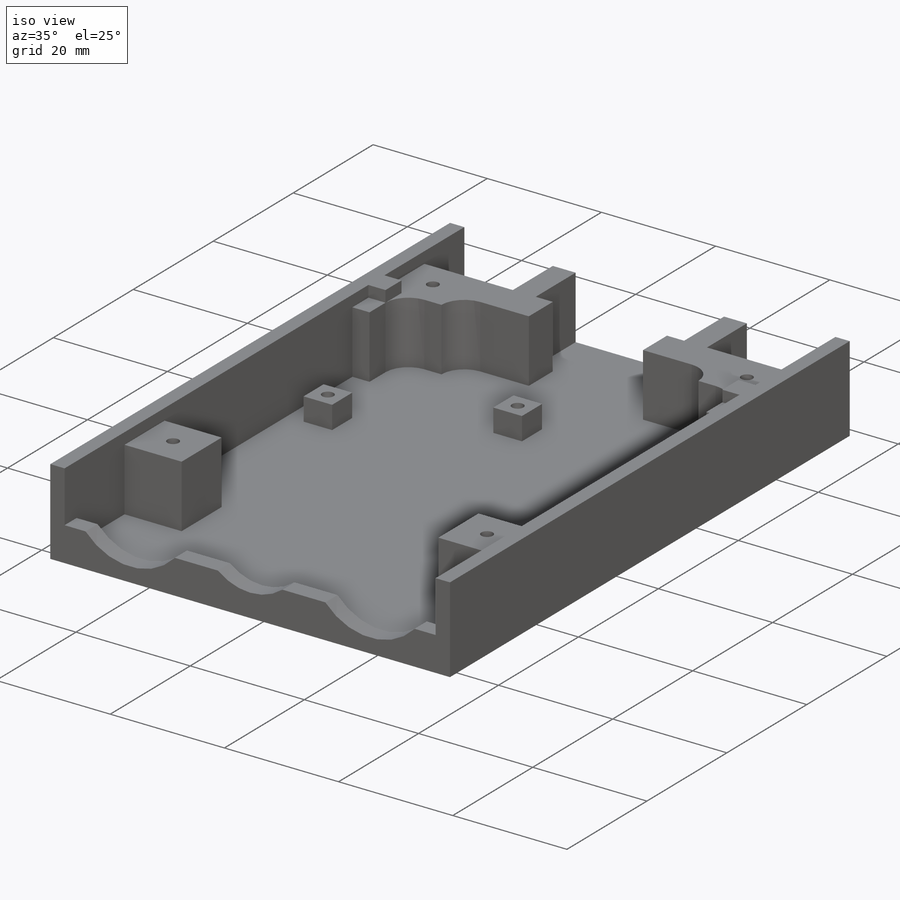
[diagram: iso view]
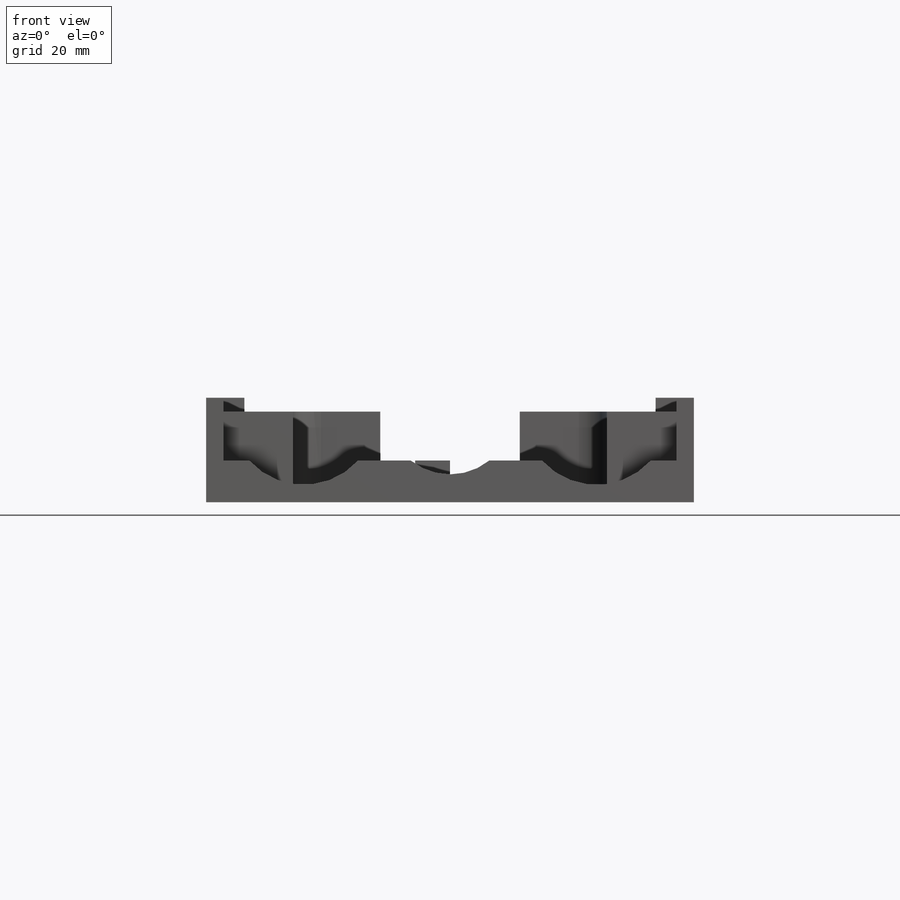
[diagram: front view]
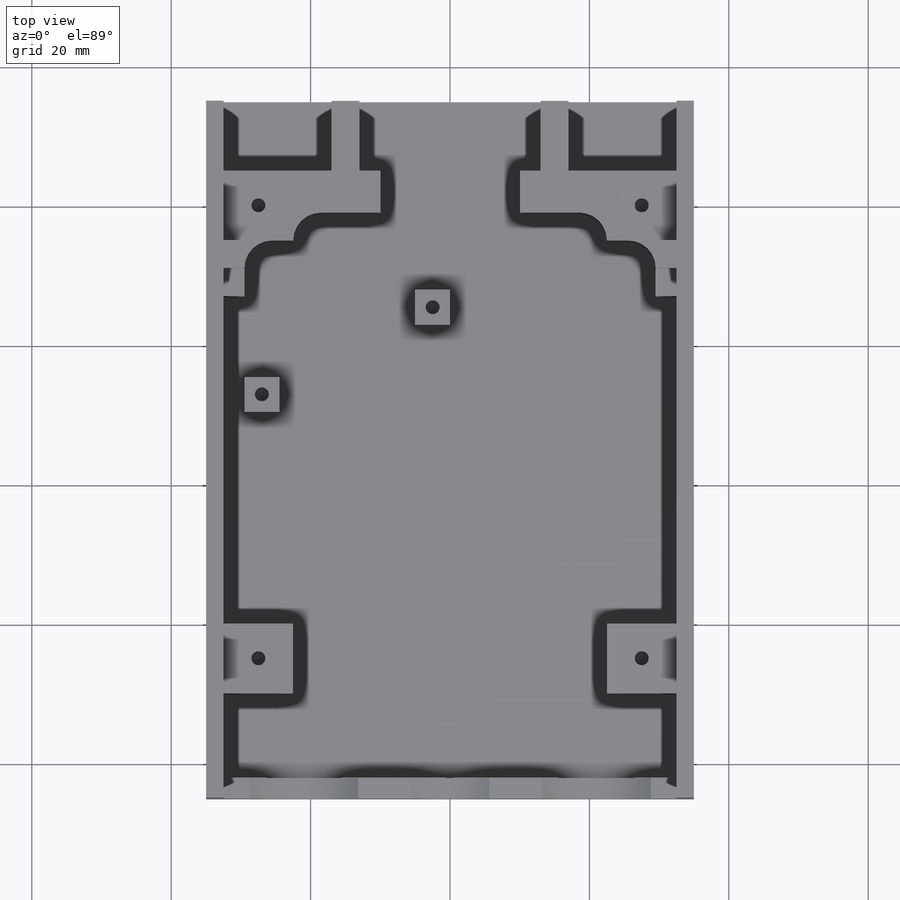
[diagram: top view]
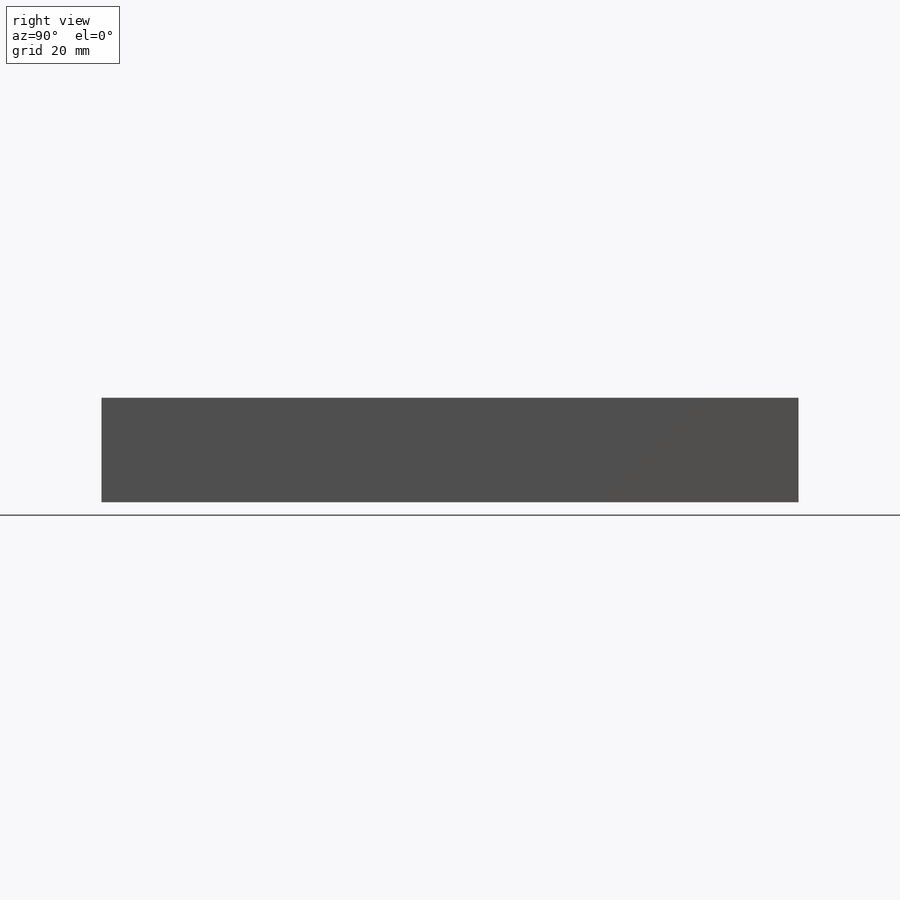
[diagram: right view]
SOLIDWORKS PART (.sldprt)
format: sldprt  version: not decoded by parser v0  size: 1,294,848 bytes
history: native  units: mm
features: sketch x11, extrude x9, material x1, fillet x1, hole x1 (+15 scaffold rows collapsed)
feature tree (38):
  scaffold x15  (default folders/planes/origin — collapsed)
  material  "HDPE 500"
  sketch  "Sketch1"  dims[D1=65.0mm D2=90.0mm]
  extrude  "Extrude1"  Depth=2mm
  sketch  "Sketch2"  dims[c1.D1=19.0mm c1.D2=20.0mm c1.D3=20.0mm c2.D2=4.0mm c2.D3=8.0mm c2.D4=4.0mm c3.D2=25.0mm c3.D4=7.5mm c3.D5=5.0mm c3.D6=4.0mm c3.D7=3.0mm c3.D8=21.0mm c3.D9=10.0mm c3.D10=6.0mm c3.D11=10.0mm c3.D12=6.0mm c3.D13=7.75mm c3.D14=7.0mm c3.D15=8.0mm c3.D16=50.0mm c3.D17=6.0mm c3.D18=14.5mm c3.D19=4.0mm c3.D20=3.0mm c3.D21=10.0mm c3.D22=10.0mm c4.D8=20.0mm c4.D18=3.0mm c4.D23=8.0mm c4.D24=4.0mm c4.D25=8.0mm c4.D26=3.0mm c4.D27=4.0mm c4.D4=20.0mm c4.D5=10.0mm c4.D6=10.0mm c4.D7=10.0mm c5.D8=10.0mm c5.D3=10.0mm c5.D9=10.0mm c5.D5=10.0mm c6.D9=6.0mm c6.D10=15.0mm]
  extrude  "Extrude2"  Depth=11mm
  sketch  "Sketch9"  dims[D1=4.0mm D2=4.0mm D3=4.0mm D4=4.0mm D5=26.0mm]
  extrude  "Extrude3"  Depth=10mm
  sketch  "Sketch10"  dims[c1.D1=3.0mm c1.D2=8.0mm c1.D3=8.0mm c1.D4=3.0mm c1.D5=8.0mm c1.D6=4.0mm c1.D7=8.0mm c1.D8=4.0mm c2.D5=4.0mm c2.D2=4.0mm]
  extrude  "Extrude4"  Depth=13mm
  fillet  "Fillet1"  Radius=4mm
  sketch  "Sketch14"  dims[c1.D1=5.0mm c1.D2=5.0mm c1.D3=9.0mm c1.D4=16.0mm c2.D1=9.0mm c2.D2=16.0mm c2.D3=5.0mm c2.D4=5.0mm c2.D5=9.0mm c2.D6=3.0mm c2.D7=~4.895245mm c3.D7=45.0deg c3.D8=5.0mm c3.D9=13.5mm c3.D10=12.5mm c3.D11=24.5mm c3.D12=24.5mm c4.D12=45.0deg c4.D13=5.0mm]
  extrude  "Extrude5"  Depth=4mm
  sketch  "Sketch16"  dims[D3=21.0mm D4=18.0mm D1=4.0mm D2=11.5mm]
  extrude  "Extrude6"  Depth=3mm
  sketch  "Sketch17"  dims[D1=2.5mm]
  extrude  "Extrude7"  Depth=15mm
  sketch  "Sketch18"
  extrude  "Extrude8"  Depth=2mm
  sketch  "Sketch19"  dims[D1=0.0mm D2=0.0mm]
  extrude  "Extrude9"  [1 undecoded]
  hole  "Ø2.0 (2) Diameter Hole1"  Diameter=2mm Depth=2mm
  sketch  "3DSketch1"  dims[D1=5.0mm D2=5.0mm D3=5.0mm D4=5.0mm D5=2.5mm D6=2.5mm D7=2.5mm D8=2.5mm D9=5.0mm D10=5.0mm D11=5.0mm D12=5.0mm]
  sketch  "Sketch20"  dims[hole-wizard template sketch: 50 standard entries collapsed; hole parameters above]
decode coverage: 20 of 22 modeling features carry decoded parameters
note: ~ marks probable driven/reference dimensions
note: 1 parameter value undecoded
note: suppression state not decoded; provenance and decode notes live in map.json
